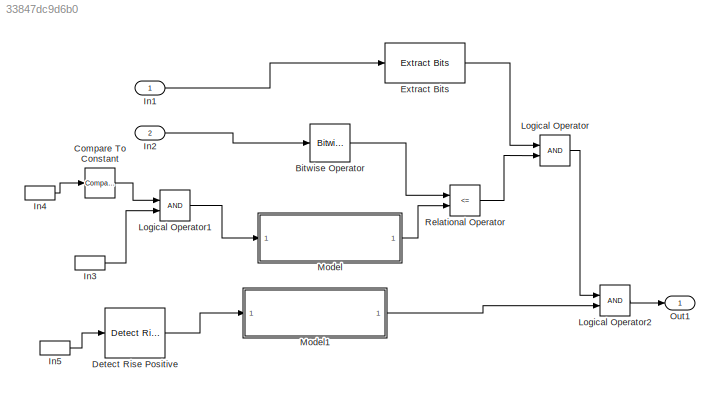
MODEL slx_33847dc9d6b0
KIND model
CONFIG AbsTol = auto
CONFIG EnableMultiTasking = off
CONFIG FixedStep = auto
CONFIG MaxStep = auto
CONFIG MinStep = auto
CONFIG RelTol = 1e-3
CONFIG SampleTimeConstraint = Unconstrained
CONFIG Solver = VariableStepAuto
CONFIG SolverName = VariableStepAuto
CONFIG StartTime = 0.0
CONFIG StopTime = 10.0
BLOCK [Reference] Bitwise Operator  REF=simulink/Logic and Bit
Operations/Bitwise
Operator
  Ports = [1, 1]
  SourceBlock = simulink/Logic and Bit\nOperations/Bitwise\nOperator
  SourceType = Bitwise Operator
BLOCK [Reference] Compare To Constant  REF=simulink/Logic and Bit
Operations/Compare
To Constant
  Ports = [1, 1]
  SourceBlock = simulink/Logic and Bit\nOperations/Compare\nTo Constant
  SourceType = Compare To Constant
BLOCK [Reference] Detect Rise Positive  REF=simulink/Logic and Bit
Operations/Detect Rise
Positive
  Ports = [1, 1]
  SourceBlock = simulink/Logic and Bit\nOperations/Detect Rise\nPositive
  SourceType = Detect Rise Positive
BLOCK [Reference] Extract Bits  REF=simulink/Logic and Bit
Operations/Extract Bits
  Ports = [1, 1]
  SourceBlock = simulink/Logic and Bit\nOperations/Extract Bits
  SourceType = Extract Bits
BLOCK [Inport] In1
  IconDisplay = Port number
BLOCK [Inport] In2
  IconDisplay = Port number
  Port = 2
BLOCK [InportShadow] In3
  IconDisplay = Port number
  Port = 2
BLOCK [InportShadow] In4
  IconDisplay = Port number
  Port = 2
BLOCK [InportShadow] In5
  IconDisplay = Port number
  Port = 2
BLOCK [Logic] Logical Operator
  AllPortsSameDT = off
  OutDataTypeStr = boolean
  Ports = [2, 1]
BLOCK [Logic] Logical Operator1
  AllPortsSameDT = off
  OutDataTypeStr = boolean
  Ports = [2, 1]
BLOCK [Logic] Logical Operator2
  AllPortsSameDT = off
  OutDataTypeStr = boolean
  Ports = [2, 1]
BLOCK [ModelReference] Model
  ModelNameDialog = logic211.slx
  ModelReferenceVersion = 1.9
  Ports = [1, 1]
  Variant = off
BLOCK [ModelReference] Model1
  ModelNameDialog = Logic212.slx
  ModelReferenceVersion = 1.3
  Ports = [1, 1]
  Variant = off
BLOCK [Outport] Out1
  IconDisplay = Port number
BLOCK [RelationalOperator] Relational Operator
  InputSameDT = off
  Operator = <=
  OutDataTypeStr = boolean
  Ports = [2, 1]
  RndMeth = Simplest
LINE Bitwise Operator:1 -> Relational Operator:1
LINE Compare To Constant:1 -> Logical Operator1:1
LINE Detect Rise Positive:1 -> Model1:1
LINE Extract Bits:1 -> Logical Operator:1
LINE In1:1 -> Extract Bits:1
LINE In2:1 -> Bitwise Operator:1
LINE In3:1 -> Logical Operator1:2
LINE In4:1 -> Compare To Constant:1
LINE In5:1 -> Detect Rise Positive:1
LINE Logical Operator1:1 -> Model:1
LINE Logical Operator2:1 -> Out1:1
LINE Logical Operator:1 -> Logical Operator2:1
LINE Model1:1 -> Logical Operator2:2
LINE Model:1 -> Relational Operator:2
LINE Relational Operator:1 -> Logical Operator:2
